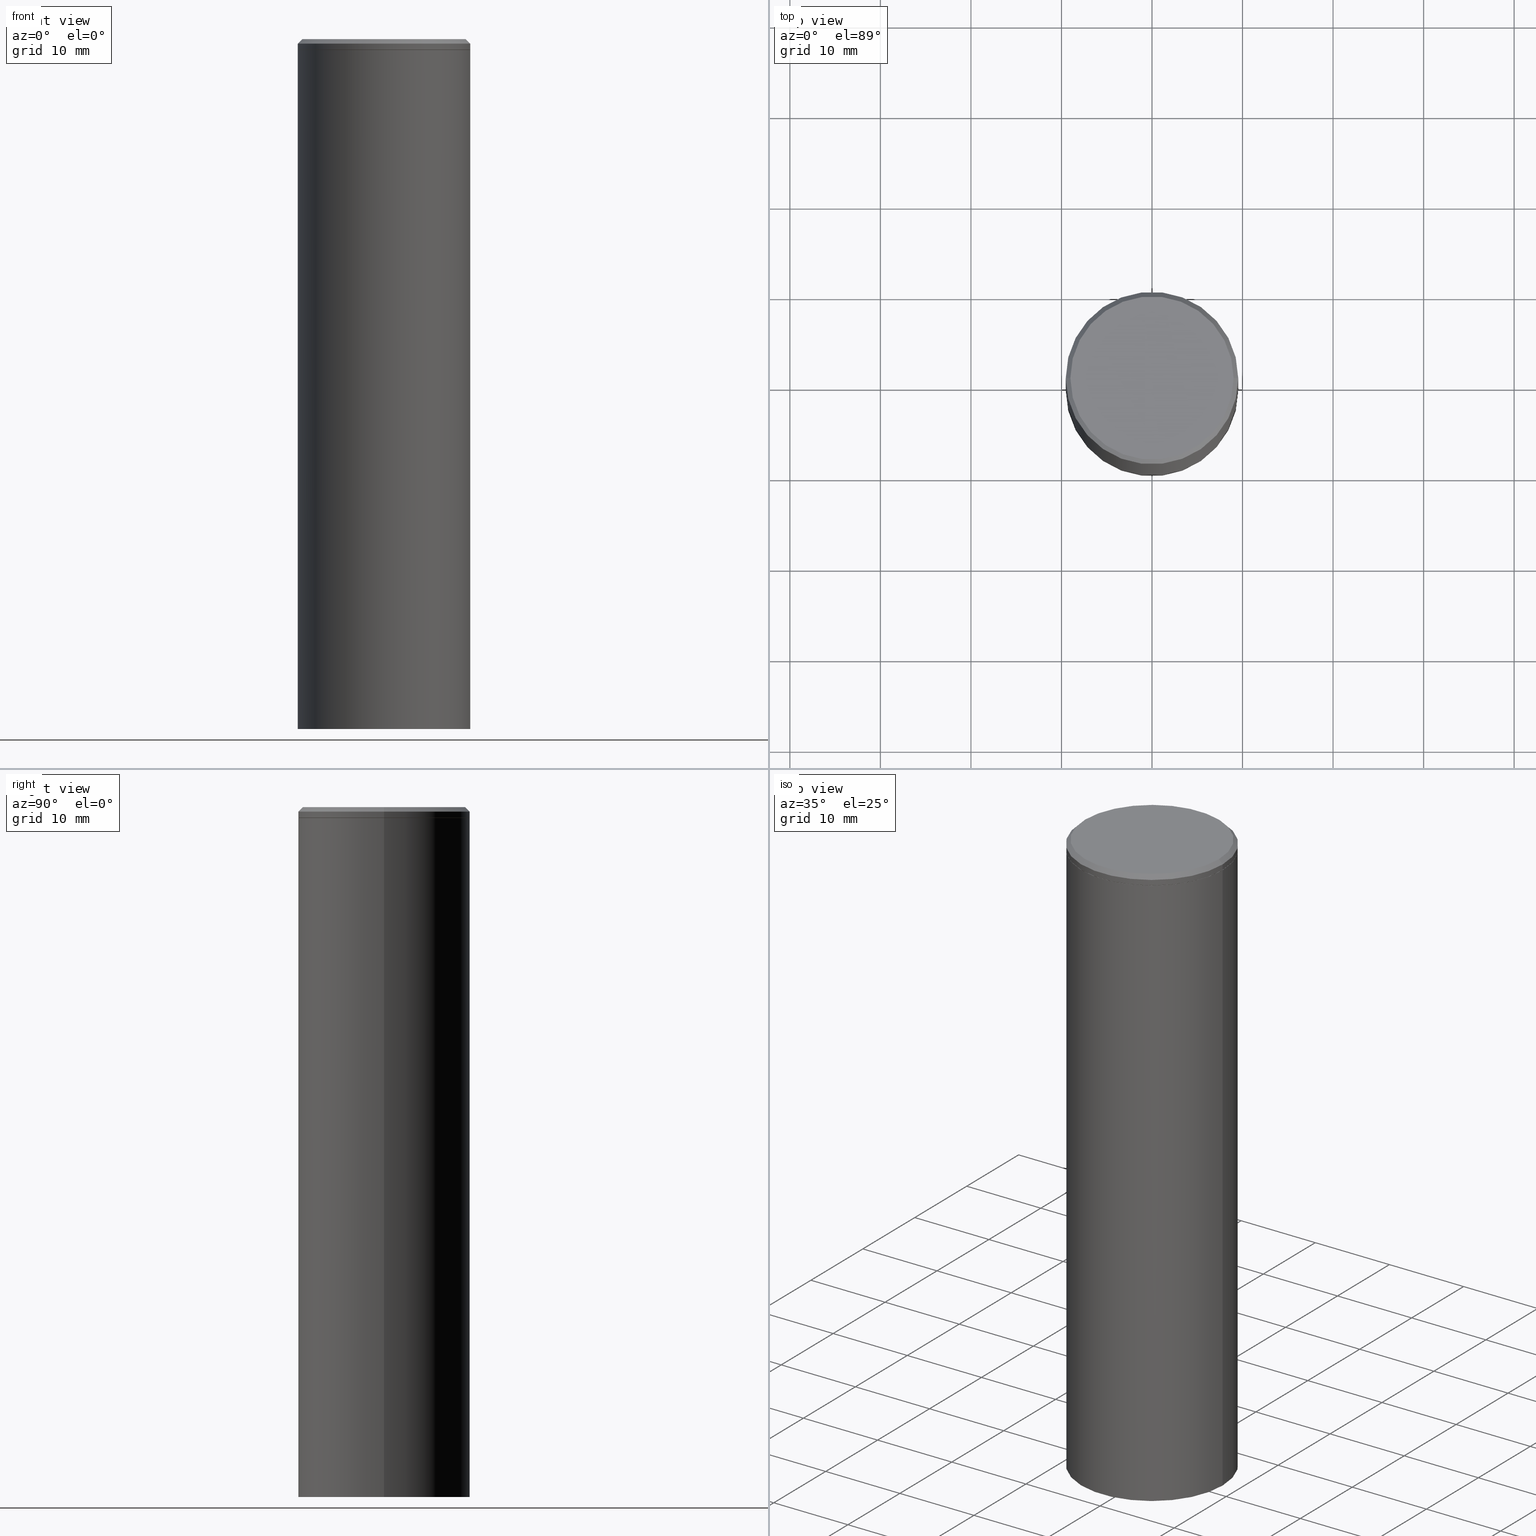
[diagram: canonical four-view strip — front | top / right | iso, engineering-drawing reading convention]
A machine part, canonical four-view strip (front | top / right | iso — engineering-drawing reading convention). The complete STEP part file that produces these views, byte-faithful:
ISO-10303-21;
HEADER;
FILE_DESCRIPTION (( 'STEP AP203' ),
    '1' );
FILE_NAME ('32683.STEP',
    '2022-04-27T15:47:16',
    ( '' ),
    ( '' ),
    'SwSTEP 2.0',
    'SolidWorks 2022',
    '' );
FILE_SCHEMA (( 'CONFIG_CONTROL_DESIGN' ));
ENDSEC;

DATA;
#1 = APPROVAL_ROLE ( '' ) ;
#2 = DIRECTION ( 'NONE',  ( 1.000000000000000000, -6.982962677686265922E-15, 0.000000000000000000 ) ) ;
#3 = MECHANICAL_CONTEXT ( 'NONE', #219, 'mechanical' ) ;
#4 = PRODUCT_DEFINITION_SHAPE ( 'NONE', 'NONE',  #389 ) ;
#5 = AXIS2_PLACEMENT_3D ( 'NONE', #379, #39, #212 ) ;
#6 = AXIS2_PLACEMENT_3D ( 'NONE', #330, #62, #200 ) ;
#7 = CARTESIAN_POINT ( 'NONE',  ( -0.3739999999999999991, 2.492631912549376863E-15, -0.04720000000000052626 ) ) ;
#8 = ORIENTED_EDGE ( 'NONE', *, *, #217, .T. ) ;
#9 = ADVANCED_FACE ( 'NONE', ( #299 ), #248, .T. ) ;
#10 = AXIS2_PLACEMENT_3D ( 'NONE', #162, #55, #317 ) ;
#11 = DATE_AND_TIME ( #256, #161 ) ;
#12 = PERSON ( 'UNSPECIFIED', 'UNSPECIFIED', 'UNSPECIFIED', ('UNSPECIFIED'), ('UNSPECIFIED'), ('UNSPECIFIED') ) ;
#13 = CARTESIAN_POINT ( 'NONE',  ( 4.890937612370280165E-31, -6.982962677686301470E-17, -0.02000000000000003164 ) ) ;
#14 = CIRCLE ( 'NONE', #5, 0.3549999999999998157 ) ;
#15 = ADVANCED_FACE ( 'NONE', ( #44 ), #323, .T. ) ;
#16 = VECTOR ( 'NONE', #191, 39.37007874015748143 ) ;
#17 = ORIENTED_EDGE ( 'NONE', *, *, #199, .F. ) ;
#18 = CARTESIAN_POINT ( 'NONE',  ( 0.3739999999999999991, -2.776425960648061828E-15, -0.04720000000000052626 ) ) ;
#19 = ORIENTED_EDGE ( 'NONE', *, *, #43, .F. ) ;
#20 = EDGE_CURVE ( 'NONE', #313, #123, #14, .T. ) ;
#21 = ORIENTED_EDGE ( 'NONE', *, *, #138, .T. ) ;
#22 = CC_DESIGN_APPROVAL ( #195, ( #298 ) ) ;
#24 = ADVANCED_FACE ( 'NONE', ( #72 ), #354, .T. ) ;
#23 = COORDINATED_UNIVERSAL_TIME_OFFSET ( 5, 0, .BEHIND. ) ;
#25 = DIRECTION ( 'NONE',  ( -1.000000000000000000, 6.982962677686265922E-15, -4.876176775795935793E-29 ) ) ;
#26 = ORIENTED_EDGE ( 'NONE', *, *, #352, .T. ) ;
#27 = COORDINATED_UNIVERSAL_TIME_OFFSET ( 5, 0, .BEHIND. ) ;
#28 = CARTESIAN_POINT ( 'NONE',  ( 4.890937612370280165E-31, -6.982962677686301470E-17, -0.02000000000000003164 ) ) ;
#29 = ORIENTED_EDGE ( 'NONE', *, *, #315, .T. ) ;
#30 = CC_DESIGN_APPROVAL ( #131, ( #85 ) ) ;
#31 = CARTESIAN_POINT ( 'NONE',  ( 0.3739999999999999991, -2.776425960648061828E-15, -0.04720000000000052626 ) ) ;
#32 = FACE_OUTER_BOUND ( 'NONE', #345, .T. ) ;
#33 = CALENDAR_DATE ( 2022, 27, 4 ) ;
#34 = CIRCLE ( 'NONE', #297, 0.3750000000000000555 ) ;
#36 = DIRECTION ( 'NONE',  ( 1.000000000000000000, -6.982962677686266711E-15, 0.000000000000000000 ) ) ;
#35 = DIMENSIONAL_EXPONENTS ( 1.000000000000000000, 0.000000000000000000, 0.000000000000000000, 0.000000000000000000, 0.000000000000000000, 0.000000000000000000, 0.000000000000000000 ) ;
#37 = ADVANCED_FACE ( 'NONE', ( #358 ), #144, .F. ) ;
#38 = LINE ( 'NONE', #261, #152 ) ;
#39 = DIRECTION ( 'NONE',  ( -2.445468806185136597E-29, 3.491481338843145583E-15, 1.000000000000000000 ) ) ;
#40 = CARTESIAN_POINT ( 'NONE',  ( -0.3750000000000000555, 2.664535259100376091E-15, -1.844600658845589598E-29 ) ) ;
#41 = CIRCLE ( 'NONE', #167, 0.3739999999999999991 ) ;
#42 = EDGE_CURVE ( 'NONE', #247, #178, #286, .T. ) ;
#43 = EDGE_CURVE ( 'NONE', #59, #205, #68, .T. ) ;
#44 = FACE_OUTER_BOUND ( 'NONE', #251, .T. ) ;
#45 = EDGE_LOOP ( 'NONE', ( #364, #114, #151, #308 ) ) ;
#46 = FACE_OUTER_BOUND ( 'NONE', #274, .T. ) ;
#47 = ORIENTED_EDGE ( 'NONE', *, *, #108, .T. ) ;
#48 = PLANE ( 'NONE',  #117 ) ;
#49 = ORIENTED_EDGE ( 'NONE', *, *, #276, .T. ) ;
#50 = ORIENTED_EDGE ( 'NONE', *, *, #141, .F. ) ;
#51 = DATE_AND_TIME ( #122, #272 ) ;
#52 = EDGE_CURVE ( 'NONE', #332, #278, #41, .T. ) ;
#53 = APPROVAL_ROLE ( '' ) ;
#54 =( NAMED_UNIT ( * ) SI_UNIT ( $, .STERADIAN. ) SOLID_ANGLE_UNIT ( ) );
#55 = DIRECTION ( 'NONE',  ( 2.438088387897960049E-29, -3.491481338843145188E-15, -1.000000000000000000 ) ) ;
#56 = VERTEX_POINT ( 'NONE', #210 ) ;
#57 = APPROVAL_PERSON_ORGANIZATION ( #119, #131, #53 ) ;
#58 = LINE ( 'NONE', #163, #65 ) ;
#59 = VERTEX_POINT ( 'NONE', #137 ) ;
#60 = PLANE ( 'NONE',  #340 ) ;
#61 = DATE_AND_TIME ( #33, #66 ) ;
#62 = DIRECTION ( 'NONE',  ( -2.445468806185136597E-29, 3.491481338843145583E-15, 1.000000000000000000 ) ) ;
#63 = COORDINATED_UNIVERSAL_TIME_OFFSET ( 5, 0, .BEHIND. ) ;
#64 = ADVANCED_FACE ( 'NONE', ( #271 ), #277, .T. ) ;
#65 = VECTOR ( 'NONE', #127, 39.37007874015748143 ) ;
#66 = LOCAL_TIME ( 11, 47, 16.00000000000000000, #27 ) ;
#67 = CARTESIAN_POINT ( 'NONE',  ( -1.533039675791079553E-18, -1.045159000398000985E-14, -2.993454350651921114 ) ) ;
#68 = LINE ( 'NONE', #40, #231 ) ;
#69 = CYLINDRICAL_SURFACE ( 'NONE', #175, 0.3749999999999999445 ) ;
#70 = DIRECTION ( 'NONE',  ( 1.000000000000000000, -6.982962677686266711E-15, 4.876176775795935793E-29 ) ) ;
#71 = EDGE_CURVE ( 'NONE', #123, #313, #355, .T. ) ;
#72 = FACE_OUTER_BOUND ( 'NONE', #264, .T. ) ;
#73 = CIRCLE ( 'NONE', #283, 0.3750000000000000555 ) ;
#74 = LOCAL_TIME ( 11, 47, 16.00000000000000000, #339 ) ;
#75 = CARTESIAN_POINT ( 'NONE',  ( 1.154261276519397305E-30, -1.647979191933982939E-16, -0.04720000000000052626 ) ) ;
#76 = MANIFOLD_SOLID_BREP ( 'Body-Move/Copy2[1]', #97 ) ;
#77 = LINE ( 'NONE', #387, #201 ) ;
#78 = ORIENTED_EDGE ( 'NONE', *, *, #359, .T. ) ;
#79 = DIRECTION ( 'NONE',  ( -2.445468806185136597E-29, 3.491481338843145583E-15, 1.000000000000000000 ) ) ;
#80 = DIRECTION ( 'NONE',  ( -2.445468806185136597E-29, 3.491481338843145583E-15, 1.000000000000000000 ) ) ;
#81 = DIRECTION ( 'NONE',  ( 1.000000000000000000, -6.982962677686265922E-15, 4.876176775795935793E-29 ) ) ;
#82 = ORIENTED_EDGE ( 'NONE', *, *, #138, .F. ) ;
#83 = FACE_OUTER_BOUND ( 'NONE', #184, .T. ) ;
#84 = AXIS2_PLACEMENT_3D ( 'NONE', #206, #102, #237 ) ;
#85 = PRODUCT_DEFINITION_FORMATION_WITH_SPECIFIED_SOURCE ( 'ANY', '', #344, .NOT_KNOWN. ) ;
#86 = VERTEX_POINT ( 'NONE', #171 ) ;
#87 = ORIENTED_EDGE ( 'NONE', *, *, #217, .F. ) ;
#88 = EDGE_CURVE ( 'NONE', #334, #205, #111, .T. ) ;
#89 = PERSON_AND_ORGANIZATION ( #12, #181 ) ;
#90 = AXIS2_PLACEMENT_3D ( 'NONE', #13, #107, #242 ) ;
#91 = APPROVAL_PERSON_ORGANIZATION ( #103, #195, #370 ) ;
#92 = APPROVAL_DATE_TIME ( #235, #228 ) ;
#93 = ADVANCED_FACE ( 'NONE', ( #109 ), #69, .T. ) ;
#94 = CYLINDRICAL_SURFACE ( 'NONE', #371, 0.3750000000000000555 ) ;
#95 = DIRECTION ( 'NONE',  ( -2.445468806185136597E-29, 3.491481338843145583E-15, 1.000000000000000000 ) ) ;
#96 = CARTESIAN_POINT ( 'NONE',  ( 1.533039675937487591E-18, -1.045159000398000985E-14, -2.993454350651921114 ) ) ;
#97 = CLOSED_SHELL ( 'NONE', ( #177, #252, #37, #24, #153 ) ) ;
#98 = AXIS2_PLACEMENT_3D ( 'NONE', #164, #128, #99 ) ;
#99 = DIRECTION ( 'NONE',  ( 1.000000000000000000, -6.982962677686265922E-15, 0.000000000000000000 ) ) ;
#100 = PERSON_AND_ORGANIZATION_ROLE ( 'design_supplier' ) ;
#101 = EDGE_CURVE ( 'NONE', #278, #332, #265, .T. ) ;
#102 = DIRECTION ( 'NONE',  ( 2.445468806185136597E-29, -3.491481338843145583E-15, -1.000000000000000000 ) ) ;
#103 = PERSON_AND_ORGANIZATION ( #12, #181 ) ;
#104 = DIRECTION ( 'NONE',  ( -2.445468806185136877E-29, 3.491481338843145188E-15, 1.000000000000000000 ) ) ;
#105 = AXIS2_PLACEMENT_3D ( 'NONE', #357, #140, #273 ) ;
#106 = LENGTH_MEASURE_WITH_UNIT ( LENGTH_MEASURE( 0.02539999999999999897 ), #244 );
#107 = DIRECTION ( 'NONE',  ( 2.445468806185136597E-29, -3.491481338843145583E-15, -1.000000000000000000 ) ) ;
#108 = EDGE_CURVE ( 'NONE', #178, #56, #38, .T. ) ;
#109 = FACE_OUTER_BOUND ( 'NONE', #388, .T. ) ;
#110 = DIRECTION ( 'NONE',  ( 2.445468806185136597E-29, -3.491481338843145583E-15, -1.000000000000000000 ) ) ;
#111 = CIRCLE ( 'NONE', #335, 0.3750000000000000555 ) ;
#112 = ORIENTED_EDGE ( 'NONE', *, *, #52, .T. ) ;
#113 = DIRECTION ( 'NONE',  ( 0.7071067811865467956, -7.319954787623254468E-15, -0.7071067811865482389 ) ) ;
#114 = ORIENTED_EDGE ( 'NONE', *, *, #141, .T. ) ;
#115 = CARTESIAN_POINT ( 'NONE',  ( 1.035986986933661899E-27, -1.479114852340251188E-13, -42.36353309080939766 ) ) ;
#116 = ORIENTED_EDGE ( 'NONE', *, *, #108, .F. ) ;
#117 = AXIS2_PLACEMENT_3D ( 'NONE', #218, #179, #81 ) ;
#118 = ORIENTED_EDGE ( 'NONE', *, *, #149, .F. ) ;
#119 = PERSON_AND_ORGANIZATION ( #12, #181 ) ;
#120 = ORIENTED_EDGE ( 'NONE', *, *, #359, .F. ) ;
#121 = DIRECTION ( 'NONE',  ( -2.445468806185136877E-29, 3.491481338843145188E-15, 1.000000000000000000 ) ) ;
#122 = CALENDAR_DATE ( 2022, 27, 4 ) ;
#123 = VERTEX_POINT ( 'NONE', #193 ) ;
#124 = CARTESIAN_POINT ( 'NONE',  ( 2.618611004132351200E-15, 0.3749999999999998890, -0.04720000000000183077 ) ) ;
#125 = CARTESIAN_POINT ( 'NONE',  ( 0.3549999999999998157, -2.538996582575039076E-15, 4.268512490117958041E-18 ) ) ;
#126 = DIRECTION ( 'NONE',  ( -2.445468806185136597E-29, 3.491481338843145583E-15, 1.000000000000000000 ) ) ;
#127 = DIRECTION ( 'NONE',  ( -0.7071067811865467956, 2.468850131082249172E-15, -0.7071067811865482389 ) ) ;
#128 = DIRECTION ( 'NONE',  ( -2.445468806185136597E-29, 3.491481338843145583E-15, 1.000000000000000000 ) ) ;
#129 =( GEOMETRIC_REPRESENTATION_CONTEXT ( 3 ) GLOBAL_UNCERTAINTY_ASSIGNED_CONTEXT ( ( #363 ) ) GLOBAL_UNIT_ASSIGNED_CONTEXT ( ( #209, #275, #54 ) ) REPRESENTATION_CONTEXT ( 'NONE', 'WORKASPACE' ) );
#130 = APPROVAL_STATUS ( 'not_yet_approved' ) ;
#131 = APPROVAL ( #130, 'UNSPECIFIED' ) ;
#132 = CALENDAR_DATE ( 2022, 27, 4 ) ;
#133 = LINE ( 'NONE', #96, #186 ) ;
#134 = ADVANCED_BREP_SHAPE_REPRESENTATION ( '32683', ( #76, #343, #223 ), #129 ) ;
#135 = AXIS2_PLACEMENT_3D ( 'NONE', #216, #79, #142 ) ;
#136 = ADVANCED_FACE ( 'NONE', ( #259 ), #190, .F. ) ;
#137 = CARTESIAN_POINT ( 'NONE',  ( -0.3750000000000019984, -7.855833012397073715E-15, -3.000000000000000444 ) ) ;
#138 = EDGE_CURVE ( 'NONE', #56, #86, #139, .T. ) ;
#139 = CIRCLE ( 'NONE', #291, 0.3749999999999998335 ) ;
#140 = DIRECTION ( 'NONE',  ( -2.445468806185136597E-29, 3.491481338843145583E-15, 1.000000000000000000 ) ) ;
#141 = EDGE_CURVE ( 'NONE', #332, #178, #287, .T. ) ;
#142 = DIRECTION ( 'NONE',  ( 1.000000000000000000, -6.982962677686266711E-15, 4.876176775795935793E-29 ) ) ;
#143 = CARTESIAN_POINT ( 'NONE',  ( 7.336406418555409790E-29, -1.047444401652943635E-14, -3.000000000000000444 ) ) ;
#144 = CONICAL_SURFACE ( 'NONE', #316, 2255.510300424507022, 1.553343034274960344 ) ;
#145 = CC_DESIGN_PERSON_AND_ORGANIZATION_ASSIGNMENT ( #320, #229, ( #389 ) ) ;
#146 = ORIENTED_EDGE ( 'NONE', *, *, #263, .T. ) ;
#147 = DIRECTION ( 'NONE',  ( -2.445468806185136597E-29, 3.491481338843145583E-15, 1.000000000000000000 ) ) ;
#148 = ORIENTED_EDGE ( 'NONE', *, *, #166, .T. ) ;
#149 = EDGE_CURVE ( 'NONE', #123, #56, #58, .T. ) ;
#150 = CLOSED_SHELL ( 'NONE', ( #338, #93, #64, #15, #9, #158, #230, #136 ) ) ;
#151 = ORIENTED_EDGE ( 'NONE', *, *, #42, .F. ) ;
#152 = VECTOR ( 'NONE', #121, 39.37007874015748143 ) ;
#153 = ADVANCED_FACE ( 'NONE', ( #233 ), #60, .F. ) ;
#154 = CARTESIAN_POINT ( 'NONE',  ( 4.890937612370280165E-31, -6.982962677686301470E-17, -0.02000000000000003164 ) ) ;
#155 = DIRECTION ( 'NONE',  ( 0.000000000000000000, 0.000000000000000000, 1.000000000000000000 ) ) ;
#156 = CARTESIAN_POINT ( 'NONE',  ( 1.154261276519397305E-30, -1.647979191933982939E-16, -0.04720000000000052626 ) ) ;
#157 = ORIENTED_EDGE ( 'NONE', *, *, #149, .T. ) ;
#158 = ADVANCED_FACE ( 'NONE', ( #32 ), #180, .T. ) ;
#159 = VECTOR ( 'NONE', #327, 39.37007874015748143 ) ;
#160 = DIRECTION ( 'NONE',  ( -2.445468806185136597E-29, 3.491481338843145583E-15, 1.000000000000000000 ) ) ;
#161 = LOCAL_TIME ( 11, 47, 16.00000000000000000, #185 ) ;
#162 = CARTESIAN_POINT ( 'NONE',  ( 2.478951750578623420E-15, 0.3549999999999998157, -1.237341619044265835E-15 ) ) ;
#163 = CARTESIAN_POINT ( 'NONE',  ( -0.3749999999999998335, 2.548781377355485929E-15, -0.02000000000000003164 ) ) ;
#164 = CARTESIAN_POINT ( 'NONE',  ( 1.129806588457544253E-30, -1.613064378545549170E-16, -0.04620000000000044904 ) ) ;
#165 = DATE_TIME_ROLE ( 'creation_date' ) ;
#166 = EDGE_CURVE ( 'NONE', #250, #221, #133, .T. ) ;
#167 = AXIS2_PLACEMENT_3D ( 'NONE', #296, #360, #203 ) ;
#168 = CARTESIAN_POINT ( 'NONE',  ( 0.000000000000000000, 0.000000000000000000, 0.000000000000000000 ) ) ;
#169 = LINE ( 'NONE', #269, #309 ) ;
#170 = SHAPE_DEFINITION_REPRESENTATION ( #4, #134 ) ;
#171 = CARTESIAN_POINT ( 'NONE',  ( 0.3749999999999998335, -2.642516375941186056E-15, -0.02000000000000003164 ) ) ;
#172 = DIRECTION ( 'NONE',  ( -1.000000000000000000, 6.982962677686268288E-15, 0.000000000000000000 ) ) ;
#173 = DIRECTION ( 'NONE',  ( 1.000000000000000000, -6.982962677686266711E-15, 0.000000000000000000 ) ) ;
#174 = DIRECTION ( 'NONE',  ( -2.445468806185136877E-29, 3.491481338843145188E-15, 1.000000000000000000 ) ) ;
#175 = AXIS2_PLACEMENT_3D ( 'NONE', #328, #243, #70 ) ;
#176 = LINE ( 'NONE', #18, #331 ) ;
#177 = ADVANCED_FACE ( 'NONE', ( #318 ), #94, .T. ) ;
#178 = VERTEX_POINT ( 'NONE', #311 ) ;
#179 = DIRECTION ( 'NONE',  ( -2.438088387897960049E-29, 3.491481338843145188E-15, 1.000000000000000000 ) ) ;
#180 = CONICAL_SURFACE ( 'NONE', #239, 0.3739999999999999991, 0.7853981633974141952 ) ;
#181 = ORGANIZATION ( 'UNSPECIFIED', 'UNSPECIFIED', '' ) ;
#182 = EDGE_LOOP ( 'NONE', ( #116, #336, #29, #82 ) ) ;
#183 = ORIENTED_EDGE ( 'NONE', *, *, #101, .F. ) ;
#184 = EDGE_LOOP ( 'NONE', ( #183, #337 ) ) ;
#185 = COORDINATED_UNIVERSAL_TIME_OFFSET ( 5, 0, .BEHIND. ) ;
#186 = VECTOR ( 'NONE', #188, 39.37007874015748143 ) ;
#187 = APPLICATION_CONTEXT ( 'configuration controlled 3d designs of mechanical parts and assemblies' ) ;
#188 = DIRECTION ( 'NONE',  ( 0.9998476951563912696, -6.920387862090559512E-15, -0.01745240643727649296 ) ) ;
#189 = APPLICATION_PROTOCOL_DEFINITION ( 'international standard', 'config_control_design', 1994, #219 ) ;
#190 = PLANE ( 'NONE',  #10 ) ;
#191 = DIRECTION ( 'NONE',  ( -2.445468806185136877E-29, 3.491481338843145188E-15, 1.000000000000000000 ) ) ;
#192 = AXIS2_PLACEMENT_3D ( 'NONE', #154, #378, #2 ) ;
#193 = CARTESIAN_POINT ( 'NONE',  ( -0.3549999999999998157, 2.513866563967054675E-15, 4.268512490082953109E-18 ) ) ;
#194 = ORIENTED_EDGE ( 'NONE', *, *, #166, .F. ) ;
#195 = APPROVAL ( #238, 'UNSPECIFIED' ) ;
#196 = EDGE_CURVE ( 'NONE', #86, #56, #227, .T. ) ;
#197 = DIRECTION ( 'NONE',  ( 2.438088387897960049E-29, -3.491481338843145188E-15, -1.000000000000000000 ) ) ;
#198 = APPROVAL_DATE_TIME ( #51, #131 ) ;
#199 = EDGE_CURVE ( 'NONE', #250, #59, #204, .T. ) ;
#200 = DIRECTION ( 'NONE',  ( 1.000000000000000000, -6.982962677686265922E-15, 4.876176775795935793E-29 ) ) ;
#201 = VECTOR ( 'NONE', #113, 39.37007874015748143 ) ;
#202 = CALENDAR_DATE ( 2022, 27, 4 ) ;
#203 = DIRECTION ( 'NONE',  ( 1.000000000000000000, -6.982962677686266711E-15, 0.000000000000000000 ) ) ;
#204 = LINE ( 'NONE', #67, #159 ) ;
#205 = VERTEX_POINT ( 'NONE', #307 ) ;
#206 = CARTESIAN_POINT ( 'NONE',  ( 4.890937612370280165E-31, -6.982962677686301470E-17, -0.02000000000000003164 ) ) ;
#207 = CARTESIAN_POINT ( 'NONE',  ( 1.154261276519397305E-30, -1.647979191933982939E-16, -0.04720000000000052626 ) ) ;
#208 = DIRECTION ( 'NONE',  ( 2.445468806185136597E-29, -3.491481338843145583E-15, -1.000000000000000000 ) ) ;
#209 =( CONVERSION_BASED_UNIT ( 'INCH', #106 ) LENGTH_UNIT ( ) NAMED_UNIT ( #35 ) );
#210 = CARTESIAN_POINT ( 'NONE',  ( -0.3749999999999998335, 2.548781377355485929E-15, -0.02000000000000003164 ) ) ;
#211 = EDGE_LOOP ( 'NONE', ( #374, #254 ) ) ;
#212 = DIRECTION ( 'NONE',  ( 1.000000000000000000, -6.982962677686266711E-15, 4.876231632511990425E-29 ) ) ;
#213 = AXIS2_PLACEMENT_3D ( 'NONE', #290, #236, #36 ) ;
#214 = APPROVAL_PERSON_ORGANIZATION ( #372, #228, #1 ) ;
#215 = DESIGN_CONTEXT ( 'detailed design', #187, 'design' ) ;
#216 = CARTESIAN_POINT ( 'NONE',  ( 0.000000000000000000, 0.000000000000000000, 0.000000000000000000 ) ) ;
#217 = EDGE_CURVE ( 'NONE', #205, #334, #34, .T. ) ;
#218 = CARTESIAN_POINT ( 'NONE',  ( 1.154261276519397305E-30, -1.647979191933982939E-16, -0.04720000000000052626 ) ) ;
#219 = APPLICATION_CONTEXT ( 'configuration controlled 3d designs of mechanical parts and assemblies' ) ;
#220 = ORIENTED_EDGE ( 'NONE', *, *, #199, .T. ) ;
#221 = VERTEX_POINT ( 'NONE', #279 ) ;
#222 = AXIS2_PLACEMENT_3D ( 'NONE', #267, #95, #322 ) ;
#223 = AXIS2_PLACEMENT_3D ( 'NONE', #168, #155, #285 ) ;
#224 = ORIENTED_EDGE ( 'NONE', *, *, #43, .T. ) ;
#225 = ORIENTED_EDGE ( 'NONE', *, *, #71, .F. ) ;
#226 = APPROVAL_STATUS ( 'not_yet_approved' ) ;
#227 = CIRCLE ( 'NONE', #192, 0.3749999999999998335 ) ;
#228 = APPROVAL ( #226, 'UNSPECIFIED' ) ;
#229 = PERSON_AND_ORGANIZATION_ROLE ( 'creator' ) ;
#230 = ADVANCED_FACE ( 'NONE', ( #83 ), #48, .F. ) ;
#231 = VECTOR ( 'NONE', #174, 39.37007874015748143 ) ;
#232 = DIRECTION ( 'NONE',  ( 1.000000000000000000, -6.982962677686266711E-15, 0.000000000000000000 ) ) ;
#233 = FACE_OUTER_BOUND ( 'NONE', #365, .T. ) ;
#234 = CARTESIAN_POINT ( 'NONE',  ( 0.3749999999999999445, -2.618611004132349622E-15, 1.828566290923475642E-29 ) ) ;
#235 = DATE_AND_TIME ( #132, #74 ) ;
#236 = DIRECTION ( 'NONE',  ( -2.445468806185136597E-29, 3.491481338843145583E-15, 1.000000000000000000 ) ) ;
#237 = DIRECTION ( 'NONE',  ( -1.000000000000000000, 6.982962677686265922E-15, 0.000000000000000000 ) ) ;
#238 = APPROVAL_STATUS ( 'not_yet_approved' ) ;
#239 = AXIS2_PLACEMENT_3D ( 'NONE', #156, #126, #369 ) ;
#240 = DIRECTION ( 'NONE',  ( -2.445468806185136597E-29, 3.491481338843145583E-15, 1.000000000000000000 ) ) ;
#241 = CONICAL_SURFACE ( 'NONE', #222, 0.3739999999999999991, 0.7853981633974141952 ) ;
#242 = DIRECTION ( 'NONE',  ( -1.000000000000000000, 6.982962677686265922E-15, 0.000000000000000000 ) ) ;
#243 = DIRECTION ( 'NONE',  ( -2.445468806185136597E-29, 3.491481338843145583E-15, 1.000000000000000000 ) ) ;
#244 =( LENGTH_UNIT ( ) NAMED_UNIT ( * ) SI_UNIT ( $, .METRE. ) );
#245 = EDGE_CURVE ( 'NONE', #313, #86, #77, .T. ) ;
#246 = AXIS2_PLACEMENT_3D ( 'NONE', #326, #295, #173 ) ;
#247 = VERTEX_POINT ( 'NONE', #249 ) ;
#248 = CYLINDRICAL_SURFACE ( 'NONE', #135, 0.3749999999999999445 ) ;
#249 = CARTESIAN_POINT ( 'NONE',  ( 0.3750000000000000555, -2.779917441986904835E-15, -0.04620000000000044904 ) ) ;
#250 = VERTEX_POINT ( 'NONE', #333 ) ;
#251 = EDGE_LOOP ( 'NONE', ( #255, #225, #157, #21 ) ) ;
#252 = ADVANCED_FACE ( 'NONE', ( #46 ), #258, .F. ) ;
#253 = AXIS2_PLACEMENT_3D ( 'NONE', #383, #240, #356 ) ;
#254 = ORIENTED_EDGE ( 'NONE', *, *, #20, .T. ) ;
#255 = ORIENTED_EDGE ( 'NONE', *, *, #245, .F. ) ;
#256 = CALENDAR_DATE ( 2022, 27, 4 ) ;
#257 = PRODUCT_RELATED_PRODUCT_CATEGORY ( 'detail', '', ( #344 ) ) ;
#258 = CONICAL_SURFACE ( 'NONE', #346, 2255.510300424507022, 1.553343034274960344 ) ;
#259 = FACE_OUTER_BOUND ( 'NONE', #211, .T. ) ;
#260 = CARTESIAN_POINT ( 'NONE',  ( 0.000000000000000000, 0.000000000000000000, 0.000000000000000000 ) ) ;
#261 = CARTESIAN_POINT ( 'NONE',  ( -0.3749999999999999445, 2.664535259100375303E-15, -1.844600658845589318E-29 ) ) ;
#262 = FACE_OUTER_BOUND ( 'NONE', #45, .T. ) ;
#263 = EDGE_CURVE ( 'NONE', #278, #247, #176, .T. ) ;
#264 = EDGE_LOOP ( 'NONE', ( #19, #26, #78, #87 ) ) ;
#265 = CIRCLE ( 'NONE', #246, 0.3739999999999999991 ) ;
#266 = PERSON_AND_ORGANIZATION_ROLE ( 'creator' ) ;
#267 = CARTESIAN_POINT ( 'NONE',  ( 1.154261276519397305E-30, -1.647979191933982939E-16, -0.04720000000000052626 ) ) ;
#268 = DATE_TIME_ROLE ( 'classification_date' ) ;
#269 = CARTESIAN_POINT ( 'NONE',  ( 0.3750000000000000555, -2.618611004132350016E-15, 1.828566290923476203E-29 ) ) ;
#270 = DIRECTION ( 'NONE',  ( -2.445468806185136597E-29, 3.491481338843145583E-15, 1.000000000000000000 ) ) ;
#271 = FACE_OUTER_BOUND ( 'NONE', #367, .T. ) ;
#272 = LOCAL_TIME ( 11, 47, 16.00000000000000000, #23 ) ;
#273 = DIRECTION ( 'NONE',  ( 1.000000000000000000, -6.982962677686266711E-15, 4.876231632511990425E-29 ) ) ;
#274 = EDGE_LOOP ( 'NONE', ( #17, #148, #288 ) ) ;
#275 =( NAMED_UNIT ( * ) PLANE_ANGLE_UNIT ( ) SI_UNIT ( $, .RADIAN. ) );
#276 = EDGE_CURVE ( 'NONE', #221, #59, #73, .T. ) ;
#277 = CONICAL_SURFACE ( 'NONE', #90, 0.3749999999999998335, 0.7853981633974472798 ) ;
#278 = VERTEX_POINT ( 'NONE', #31 ) ;
#279 = CARTESIAN_POINT ( 'NONE',  ( 0.3750000000000019984, -1.304713076569377647E-14, -3.000000000000000444 ) ) ;
#280 = EDGE_LOOP ( 'NONE', ( #49, #224, #362, #120 ) ) ;
#281 = ORIENTED_EDGE ( 'NONE', *, *, #276, .F. ) ;
#282 = DIRECTION ( 'NONE',  ( 1.000000000000000000, -6.982962677686265922E-15, 0.000000000000000000 ) ) ;
#283 = AXIS2_PLACEMENT_3D ( 'NONE', #143, #147, #232 ) ;
#284 = CC_DESIGN_DATE_AND_TIME_ASSIGNMENT ( #61, #165, ( #389 ) ) ;
#285 = DIRECTION ( 'NONE',  ( 1.000000000000000000, 0.000000000000000000, 0.000000000000000000 ) ) ;
#286 = CIRCLE ( 'NONE', #253, 0.3750000000000000555 ) ;
#287 = LINE ( 'NONE', #7, #361 ) ;
#288 = ORIENTED_EDGE ( 'NONE', *, *, #352, .F. ) ;
#289 = PERSON_AND_ORGANIZATION ( #12, #181 ) ;
#290 = CARTESIAN_POINT ( 'NONE',  ( 7.336406418555409790E-29, -1.047444401652943635E-14, -3.000000000000000444 ) ) ;
#291 = AXIS2_PLACEMENT_3D ( 'NONE', #28, #160, #350 ) ;
#292 = LOCAL_TIME ( 11, 47, 16.00000000000000000, #63 ) ;
#293 = PERSON_AND_ORGANIZATION_ROLE ( 'classification_officer' ) ;
#294 = EDGE_CURVE ( 'NONE', #178, #247, #302, .T. ) ;
#295 = DIRECTION ( 'NONE',  ( -2.445468806185136597E-29, 3.491481338843145583E-15, 1.000000000000000000 ) ) ;
#296 = CARTESIAN_POINT ( 'NONE',  ( 1.154261276519397305E-30, -1.647979191933982939E-16, -0.04720000000000052626 ) ) ;
#297 = AXIS2_PLACEMENT_3D ( 'NONE', #75, #80, #282 ) ;
#298 = SECURITY_CLASSIFICATION ( '', '', #353 ) ;
#299 = FACE_OUTER_BOUND ( 'NONE', #182, .T. ) ;
#300 = DIRECTION ( 'NONE',  ( 0.7071067811865232589, -2.468850131082003836E-15, 0.7071067811865715536 ) ) ;
#301 = ORIENTED_EDGE ( 'NONE', *, *, #245, .T. ) ;
#302 = CIRCLE ( 'NONE', #98, 0.3750000000000000555 ) ;
#303 = DIRECTION ( 'NONE',  ( -1.000000000000000000, 6.982962677686268288E-15, 0.000000000000000000 ) ) ;
#304 = CC_DESIGN_APPROVAL ( #228, ( #389 ) ) ;
#305 = ORIENTED_EDGE ( 'NONE', *, *, #315, .F. ) ;
#306 = ORIENTED_EDGE ( 'NONE', *, *, #20, .F. ) ;
#307 = CARTESIAN_POINT ( 'NONE',  ( -0.3750000000000000555, -2.655085708761041787E-15, -0.04720000000000052626 ) ) ;
#308 = ORIENTED_EDGE ( 'NONE', *, *, #263, .F. ) ;
#309 = VECTOR ( 'NONE', #104, 39.37007874015748143 ) ;
#310 = DATE_AND_TIME ( #202, #292 ) ;
#311 = CARTESIAN_POINT ( 'NONE',  ( -0.3750000000000000555, 2.548967226784667428E-15, -0.04620000000000044904 ) ) ;
#312 = PERSON_AND_ORGANIZATION ( #12, #181 ) ;
#313 = VERTEX_POINT ( 'NONE', #125 ) ;
#314 = CARTESIAN_POINT ( 'NONE',  ( -0.3739999999999999991, 2.497930366897598871E-15, -0.04720000000000052626 ) ) ;
#315 = EDGE_CURVE ( 'NONE', #247, #86, #376, .T. ) ;
#316 = AXIS2_PLACEMENT_3D ( 'NONE', #324, #208, #172 ) ;
#317 = DIRECTION ( 'NONE',  ( -1.000000000000000000, 6.982962677686265922E-15, -4.876176775795935793E-29 ) ) ;
#318 = FACE_OUTER_BOUND ( 'NONE', #280, .T. ) ;
#319 = ORIENTED_EDGE ( 'NONE', *, *, #294, .F. ) ;
#320 = PERSON_AND_ORGANIZATION ( #12, #181 ) ;
#321 = CC_DESIGN_DATE_AND_TIME_ASSIGNMENT ( #11, #268, ( #298 ) ) ;
#322 = DIRECTION ( 'NONE',  ( 1.000000000000000000, -6.982962677686266711E-15, 0.000000000000000000 ) ) ;
#323 = CONICAL_SURFACE ( 'NONE', #84, 0.3749999999999998335, 0.7853981633974472798 ) ;
#324 = CARTESIAN_POINT ( 'NONE',  ( 1.035986986933661899E-27, -1.479114852340251188E-13, -42.36353309080939766 ) ) ;
#325 = APPROVAL_DATE_TIME ( #310, #195 ) ;
#326 = CARTESIAN_POINT ( 'NONE',  ( 1.154261276519397305E-30, -1.647979191933982939E-16, -0.04720000000000052626 ) ) ;
#327 = DIRECTION ( 'NONE',  ( -0.9998476951563912696, 6.920964387254060733E-15, -0.01745240643727649296 ) ) ;
#328 = CARTESIAN_POINT ( 'NONE',  ( 0.000000000000000000, 0.000000000000000000, 0.000000000000000000 ) ) ;
#329 = CC_DESIGN_PERSON_AND_ORGANIZATION_ASSIGNMENT ( #89, #293, ( #298 ) ) ;
#330 = CARTESIAN_POINT ( 'NONE',  ( 0.000000000000000000, 0.000000000000000000, 0.000000000000000000 ) ) ;
#331 = VECTOR ( 'NONE', #300, 39.37007874015748854 ) ;
#332 = VERTEX_POINT ( 'NONE', #314 ) ;
#333 = CARTESIAN_POINT ( 'NONE',  ( 7.321469753142454326E-29, -1.045005696430414481E-14, -2.993454350651921114 ) ) ;
#334 = VERTEX_POINT ( 'NONE', #351 ) ;
#335 = AXIS2_PLACEMENT_3D ( 'NONE', #207, #382, #380 ) ;
#336 = ORIENTED_EDGE ( 'NONE', *, *, #294, .T. ) ;
#337 = ORIENTED_EDGE ( 'NONE', *, *, #52, .F. ) ;
#338 = ADVANCED_FACE ( 'NONE', ( #262 ), #241, .T. ) ;
#339 = COORDINATED_UNIVERSAL_TIME_OFFSET ( 5, 0, .BEHIND. ) ;
#340 = AXIS2_PLACEMENT_3D ( 'NONE', #124, #197, #25 ) ;
#341 = APPLICATION_PROTOCOL_DEFINITION ( 'international standard', 'config_control_design', 1994, #187 ) ;
#342 = PERSON_AND_ORGANIZATION_ROLE ( 'design_owner' ) ;
#343 = MANIFOLD_SOLID_BREP ( 'Body-Move/Copy2[2]', #150 ) ;
#344 = PRODUCT ( '32683', '32683', '', ( #3 ) ) ;
#345 = EDGE_LOOP ( 'NONE', ( #50, #112, #146, #319 ) ) ;
#346 = AXIS2_PLACEMENT_3D ( 'NONE', #115, #110, #303 ) ;
#347 = CC_DESIGN_SECURITY_CLASSIFICATION ( #298, ( #85 ) ) ;
#348 = DIRECTION ( 'NONE',  ( -0.7071067811865232589, 7.493145998870265808E-15, 0.7071067811865715536 ) ) ;
#349 = ORIENTED_EDGE ( 'NONE', *, *, #196, .F. ) ;
#350 = DIRECTION ( 'NONE',  ( 1.000000000000000000, -6.982962677686265922E-15, 0.000000000000000000 ) ) ;
#351 = CARTESIAN_POINT ( 'NONE',  ( 0.3750000000000000555, -2.783408923325748236E-15, -0.04720000000000052626 ) ) ;
#352 = EDGE_CURVE ( 'NONE', #59, #221, #381, .T. ) ;
#353 = SECURITY_CLASSIFICATION_LEVEL ( 'unclassified' ) ;
#354 = CYLINDRICAL_SURFACE ( 'NONE', #6, 0.3750000000000000555 ) ;
#355 = CIRCLE ( 'NONE', #105, 0.3549999999999998157 ) ;
#356 = DIRECTION ( 'NONE',  ( 1.000000000000000000, -6.982962677686265922E-15, 0.000000000000000000 ) ) ;
#357 = CARTESIAN_POINT ( 'NONE',  ( -1.043851414335219820E-46, 1.490343170380447200E-32, 4.268512490100411279E-18 ) ) ;
#358 = FACE_OUTER_BOUND ( 'NONE', #386, .T. ) ;
#359 = EDGE_CURVE ( 'NONE', #221, #334, #169, .T. ) ;
#360 = DIRECTION ( 'NONE',  ( -2.445468806185136597E-29, 3.491481338843145583E-15, 1.000000000000000000 ) ) ;
#361 = VECTOR ( 'NONE', #348, 39.37007874015748854 ) ;
#362 = ORIENTED_EDGE ( 'NONE', *, *, #88, .F. ) ;
#363 = UNCERTAINTY_MEASURE_WITH_UNIT (LENGTH_MEASURE( 1.000000000000000082E-05 ), #209, 'distance_accuracy_value', 'NONE');
#364 = ORIENTED_EDGE ( 'NONE', *, *, #101, .T. ) ;
#365 = EDGE_LOOP ( 'NONE', ( #385, #8 ) ) ;
#366 = CC_DESIGN_PERSON_AND_ORGANIZATION_ASSIGNMENT ( #289, #100, ( #85 ) ) ;
#367 = EDGE_LOOP ( 'NONE', ( #306, #301, #390, #118 ) ) ;
#368 = ORIENTED_EDGE ( 'NONE', *, *, #42, .T. ) ;
#369 = DIRECTION ( 'NONE',  ( 1.000000000000000000, -6.982962677686266711E-15, 0.000000000000000000 ) ) ;
#370 = APPROVAL_ROLE ( '' ) ;
#371 = AXIS2_PLACEMENT_3D ( 'NONE', #260, #270, #373 ) ;
#372 = PERSON_AND_ORGANIZATION ( #12, #181 ) ;
#373 = DIRECTION ( 'NONE',  ( 1.000000000000000000, -6.982962677686265922E-15, 4.876176775795935793E-29 ) ) ;
#374 = ORIENTED_EDGE ( 'NONE', *, *, #71, .T. ) ;
#375 = CC_DESIGN_PERSON_AND_ORGANIZATION_ASSIGNMENT ( #377, #342, ( #344 ) ) ;
#376 = LINE ( 'NONE', #234, #16 ) ;
#377 = PERSON_AND_ORGANIZATION ( #12, #181 ) ;
#378 = DIRECTION ( 'NONE',  ( -2.445468806185136597E-29, 3.491481338843145583E-15, 1.000000000000000000 ) ) ;
#379 = CARTESIAN_POINT ( 'NONE',  ( -1.043851414335219820E-46, 1.490343170380447200E-32, 4.268512490100411279E-18 ) ) ;
#380 = DIRECTION ( 'NONE',  ( 1.000000000000000000, -6.982962677686265922E-15, 0.000000000000000000 ) ) ;
#381 = CIRCLE ( 'NONE', #213, 0.3750000000000000555 ) ;
#382 = DIRECTION ( 'NONE',  ( -2.445468806185136597E-29, 3.491481338843145583E-15, 1.000000000000000000 ) ) ;
#383 = CARTESIAN_POINT ( 'NONE',  ( 1.129806588457544253E-30, -1.613064378545549170E-16, -0.04620000000000044904 ) ) ;
#384 = CC_DESIGN_PERSON_AND_ORGANIZATION_ASSIGNMENT ( #312, #266, ( #85 ) ) ;
#385 = ORIENTED_EDGE ( 'NONE', *, *, #88, .T. ) ;
#386 = EDGE_LOOP ( 'NONE', ( #194, #220, #281 ) ) ;
#387 = CARTESIAN_POINT ( 'NONE',  ( 0.3749999999999998335, -2.642516375941186056E-15, -0.02000000000000003164 ) ) ;
#388 = EDGE_LOOP ( 'NONE', ( #368, #47, #349, #305 ) ) ;
#389 = PRODUCT_DEFINITION ( 'UNKNOWN', '', #85, #215 ) ;
#390 = ORIENTED_EDGE ( 'NONE', *, *, #196, .T. ) ;
ENDSEC;
END-ISO-10303-21;
